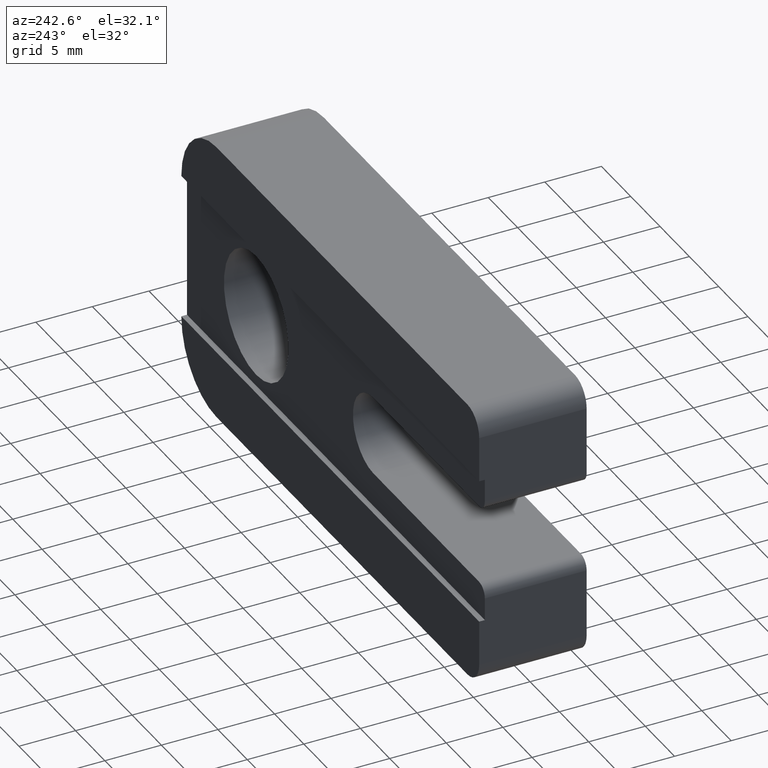
[diagram: clean part render]
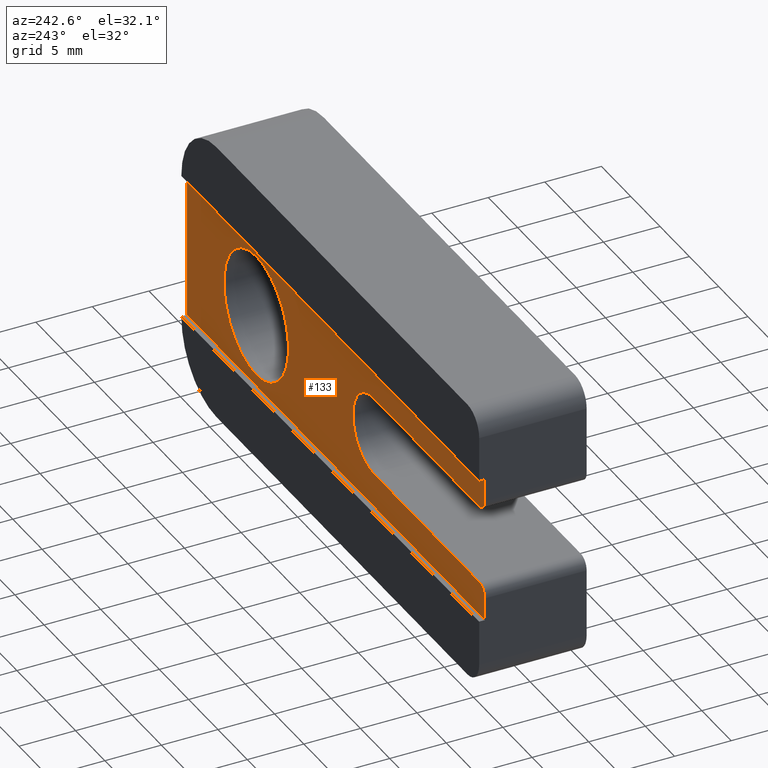
[diagram: same view with one face highlighted and labeled with its STEP entity id]
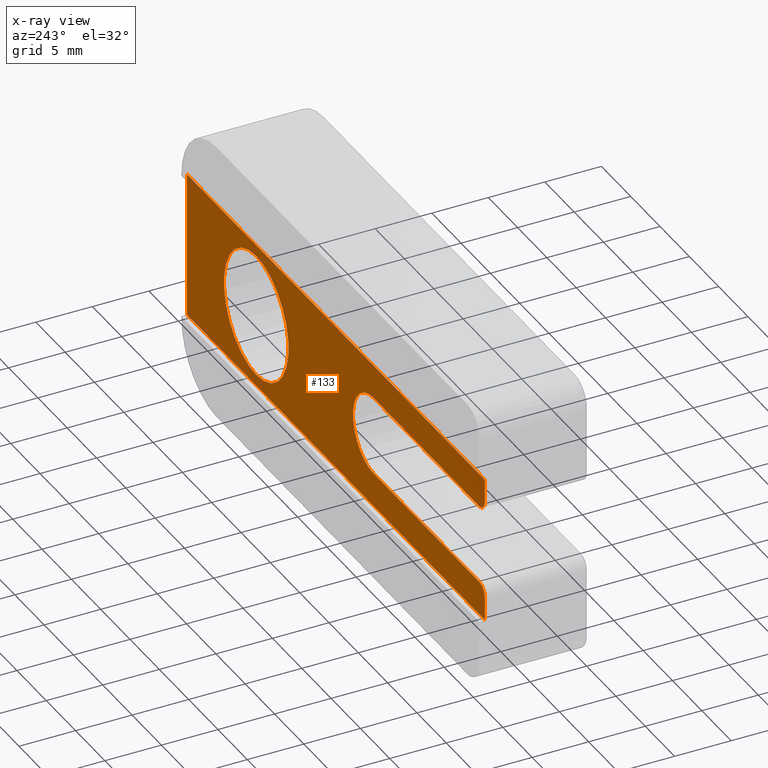
[diagram: x-ray of the same camera — body ghosted, the highlighted face saturated]
A machine part, auxiliary view. The second image highlights one B-rep face of the part: STEP entity #133.
The next image is the same camera in x-ray: the body ghosted, the highlighted face saturated — about 0% of this face is hidden behind the body in this view.
In plain terms, the highlighted planar face has unit normal (0, -1, 0).
Its self-contained STEP definition (entity closure, byte-faithful):
#7 = AXIS2_PLACEMENT_3D ( 'NONE', #390, #383, #438 ) ;
#11 = EDGE_CURVE ( 'NONE', #710, #711, #649, .T. ) ;
#12 = AXIS2_PLACEMENT_3D ( 'NONE', #379, #350, #395 ) ;
#28 = EDGE_CURVE ( 'NONE', #691, #710, #625, .T. ) ;
#29 = AXIS2_PLACEMENT_3D ( 'NONE', #368, #367, #399 ) ;
#40 = EDGE_CURVE ( 'NONE', #720, #715, #614, .T. ) ;
#44 = EDGE_CURVE ( 'NONE', #712, #714, #608, .T. ) ;
#60 = EDGE_CURVE ( 'NONE', #720, #693, #589, .T. ) ;
#65 = EDGE_CURVE ( 'NONE', #527, #527, #584, .T. ) ;
#67 = EDGE_CURVE ( 'NONE', #715, #712, #582, .T. ) ;
#69 = EDGE_CURVE ( 'NONE', #694, #691, #580, .T. ) ;
#71 = EDGE_CURVE ( 'NONE', #706, #694, #576, .T. ) ;
#73 = EDGE_CURVE ( 'NONE', #693, #706, #572, .T. ) ;
#74 = EDGE_CURVE ( 'NONE', #711, #714, #570, .T. ) ;
#85 = CARTESIAN_POINT ( 'NONE',  ( 0.0000000000000000000, 9.000000000000000000, -19.00000000000000400 ) ) ;
#86 = DIRECTION ( 'NONE',  ( -1.000000000000000000, 0.0000000000000000000, 0.0000000000000000000 ) ) ;
#94 = DIRECTION ( 'NONE',  ( 0.0000000000000000000, 0.0000000000000000000, 1.000000000000000000 ) ) ;
#130 = CARTESIAN_POINT ( 'NONE',  ( 50.79999999999999700, 9.000000000000000000, -19.00000000000000400 ) ) ;
#133 = ADVANCED_FACE ( 'NONE', ( #563, #559 ), #433, .F. ) ;
#169 = CARTESIAN_POINT ( 'NONE',  ( 50.79999999999999700, 9.000000000000000000, -19.00000000000000400 ) ) ;
#170 = CARTESIAN_POINT ( 'NONE',  ( 0.0000000000000000000, 9.000000000000000000, -8.000000000000001800 ) ) ;
#172 = CARTESIAN_POINT ( 'NONE',  ( 50.79999999999999700, 9.000000000000000000, -6.000000000000003600 ) ) ;
#183 = CARTESIAN_POINT ( 'NONE',  ( 0.0000000000000000000, 9.000000000000000000, -6.000000000000003600 ) ) ;
#187 = CARTESIAN_POINT ( 'NONE',  ( 0.0000000000000000000, 9.000000000000000000, -19.00000000000000400 ) ) ;
#188 = CARTESIAN_POINT ( 'NONE',  ( 0.0000000000000000000, 9.000000000000000000, -16.99999999999999600 ) ) ;
#189 = CARTESIAN_POINT ( 'NONE',  ( 18.99999999999999600, 9.000000000000000000, -16.00000000000000000 ) ) ;
#191 = CARTESIAN_POINT ( 'NONE',  ( 1.000000000000000900, 9.000000000000000000, -15.99999999999999600 ) ) ;
#192 = CARTESIAN_POINT ( 'NONE',  ( 18.99999999999999600, 9.000000000000000000, -9.000000000000000000 ) ) ;
#197 = CARTESIAN_POINT ( 'NONE',  ( 1.000000000000000900, 9.000000000000000000, -8.999999999999998200 ) ) ;
#202 = CARTESIAN_POINT ( 'NONE',  ( 38.99999999999999300, 9.000000000000000000, -7.000000000000008000 ) ) ;
#282 = ORIENTED_EDGE ( 'NONE', *, *, #67, .F. ) ;
#283 = ORIENTED_EDGE ( 'NONE', *, *, #44, .F. ) ;
#284 = ORIENTED_EDGE ( 'NONE', *, *, #74, .T. ) ;
#285 = ORIENTED_EDGE ( 'NONE', *, *, #11, .T. ) ;
#286 = ORIENTED_EDGE ( 'NONE', *, *, #28, .T. ) ;
#287 = ORIENTED_EDGE ( 'NONE', *, *, #69, .T. ) ;
#288 = ORIENTED_EDGE ( 'NONE', *, *, #71, .T. ) ;
#289 = ORIENTED_EDGE ( 'NONE', *, *, #73, .T. ) ;
#290 = ORIENTED_EDGE ( 'NONE', *, *, #60, .T. ) ;
#291 = ORIENTED_EDGE ( 'NONE', *, *, #40, .F. ) ;
#292 = ORIENTED_EDGE ( 'NONE', *, *, #65, .F. ) ;
#343 = EDGE_LOOP ( 'NONE', ( #292 ) ) ;
#347 = EDGE_LOOP ( 'NONE', ( #291, #290, #289, #288, #287, #286, #285, #284, #283, #282 ) ) ;
#350 = DIRECTION ( 'NONE',  ( -0.0000000000000000000, 1.000000000000000000, -0.0000000000000000000 ) ) ;
#354 = DIRECTION ( 'NONE',  ( 0.0000000000000000000, 0.0000000000000000000, -1.000000000000000000 ) ) ;
#357 = CARTESIAN_POINT ( 'NONE',  ( 50.79999999999999700, 9.000000000000000000, -19.00000000000000400 ) ) ;
#360 = DIRECTION ( 'NONE',  ( -0.0000000000000000000, 1.000000000000000000, -0.0000000000000000000 ) ) ;
#367 = DIRECTION ( 'NONE',  ( 0.0000000000000000000, 1.000000000000000000, 0.0000000000000000000 ) ) ;
#368 = CARTESIAN_POINT ( 'NONE',  ( 38.99999999999999300, 9.000000000000000000, -12.50000000000000400 ) ) ;
#369 = DIRECTION ( 'NONE',  ( 1.000000000000000000, 0.0000000000000000000, -9.130123557772672000E-017 ) ) ;
#370 = DIRECTION ( 'NONE',  ( -1.000000000000000000, 0.0000000000000000000, 1.826024711554534400E-016 ) ) ;
#376 = DIRECTION ( 'NONE',  ( 0.0000000000000000000, -0.0000000000000000000, -1.000000000000000000 ) ) ;
#379 = CARTESIAN_POINT ( 'NONE',  ( 18.99999999999999600, 9.000000000000000000, -12.50000000000000000 ) ) ;
#383 = DIRECTION ( 'NONE',  ( -0.0000000000000000000, 1.000000000000000000, -0.0000000000000000000 ) ) ;
#387 = CARTESIAN_POINT ( 'NONE',  ( 18.99999999999999600, 9.000000000000000000, -9.000000000000000000 ) ) ;
#388 = CARTESIAN_POINT ( 'NONE',  ( 50.79999999999999700, 9.000000000000000000, -6.000000000000003600 ) ) ;
#390 = CARTESIAN_POINT ( 'NONE',  ( 1.000000000000000000, 9.000000000000000000, -7.999999999999998200 ) ) ;
#395 = DIRECTION ( 'NONE',  ( 0.0000000000000000000, 0.0000000000000000000, -1.000000000000000000 ) ) ;
#396 = DIRECTION ( 'NONE',  ( 0.0000000000000000000, -1.000000000000000000, 0.0000000000000000000 ) ) ;
#399 = DIRECTION ( 'NONE',  ( 0.0000000000000000000, 0.0000000000000000000, 1.000000000000000000 ) ) ;
#402 = DIRECTION ( 'NONE',  ( 0.0000000000000000000, 0.0000000000000000000, 1.000000000000000000 ) ) ;
#403 = DIRECTION ( 'NONE',  ( -0.0000000000000000000, -0.0000000000000000000, -1.000000000000000000 ) ) ;
#413 = CARTESIAN_POINT ( 'NONE',  ( 18.99999999999999600, 9.000000000000000000, -16.00000000000000000 ) ) ;
#424 = CARTESIAN_POINT ( 'NONE',  ( 0.0000000000000000000, 9.000000000000000000, -19.00000000000000400 ) ) ;
#425 = CARTESIAN_POINT ( 'NONE',  ( 50.79999999999999700, 9.000000000000000000, -6.000000000000003600 ) ) ;
#428 = DIRECTION ( 'NONE',  ( 1.000000000000000000, -0.0000000000000000000, -0.0000000000000000000 ) ) ;
#433 = PLANE ( 'NONE',  #749 ) ;
#438 = DIRECTION ( 'NONE',  ( 0.0000000000000000000, 0.0000000000000000000, -1.000000000000000000 ) ) ;
#440 = CARTESIAN_POINT ( 'NONE',  ( 1.000000000000000900, 9.000000000000000000, -16.99999999999999600 ) ) ;
#527 = VERTEX_POINT ( 'NONE', #202 ) ;
#559 = FACE_OUTER_BOUND ( 'NONE', #347, .T. ) ;
#563 = FACE_BOUND ( 'NONE', #343, .T. ) ;
#569 = VECTOR ( 'NONE', #402, 1000.000000000000000 ) ;
#570 = CIRCLE ( 'NONE', #751, 1.000000000000000900 ) ;
#572 = LINE ( 'NONE', #424, #569 ) ;
#573 = VECTOR ( 'NONE', #428, 1000.000000000000000 ) ;
#576 = LINE ( 'NONE', #425, #573 ) ;
#577 = VECTOR ( 'NONE', #403, 1000.000000000000000 ) ;
#580 = LINE ( 'NONE', #357, #577 ) ;
#582 = CIRCLE ( 'NONE', #12, 3.499999999999999600 ) ;
#584 = CIRCLE ( 'NONE', #29, 5.499999999999996400 ) ;
#589 = CIRCLE ( 'NONE', #7, 0.9999999999999991100 ) ;
#605 = VECTOR ( 'NONE', #370, 1000.000000000000000 ) ;
#608 = LINE ( 'NONE', #413, #605 ) ;
#611 = VECTOR ( 'NONE', #369, 1000.000000000000000 ) ;
#614 = LINE ( 'NONE', #387, #611 ) ;
#623 = VECTOR ( 'NONE', #86, 1000.000000000000000 ) ;
#625 = LINE ( 'NONE', #130, #623 ) ;
#644 = VECTOR ( 'NONE', #94, 1000.000000000000000 ) ;
#649 = LINE ( 'NONE', #85, #644 ) ;
#691 = VERTEX_POINT ( 'NONE', #169 ) ;
#693 = VERTEX_POINT ( 'NONE', #170 ) ;
#694 = VERTEX_POINT ( 'NONE', #172 ) ;
#706 = VERTEX_POINT ( 'NONE', #183 ) ;
#710 = VERTEX_POINT ( 'NONE', #187 ) ;
#711 = VERTEX_POINT ( 'NONE', #188 ) ;
#712 = VERTEX_POINT ( 'NONE', #189 ) ;
#714 = VERTEX_POINT ( 'NONE', #191 ) ;
#715 = VERTEX_POINT ( 'NONE', #192 ) ;
#720 = VERTEX_POINT ( 'NONE', #197 ) ;
#749 = AXIS2_PLACEMENT_3D ( 'NONE', #388, #396, #376 ) ;
#751 = AXIS2_PLACEMENT_3D ( 'NONE', #440, #360, #354 ) ;